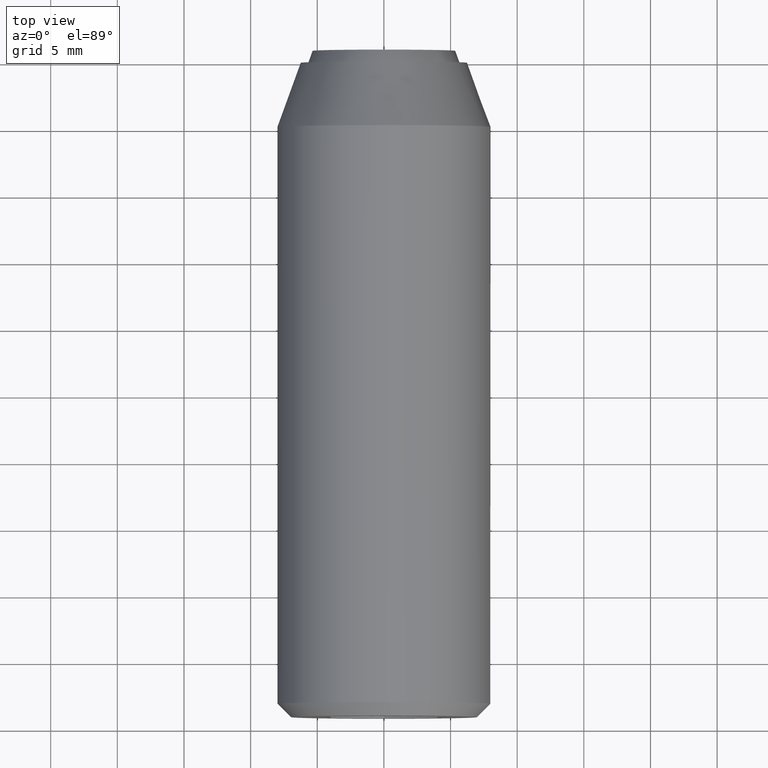
[diagram: clean part render]
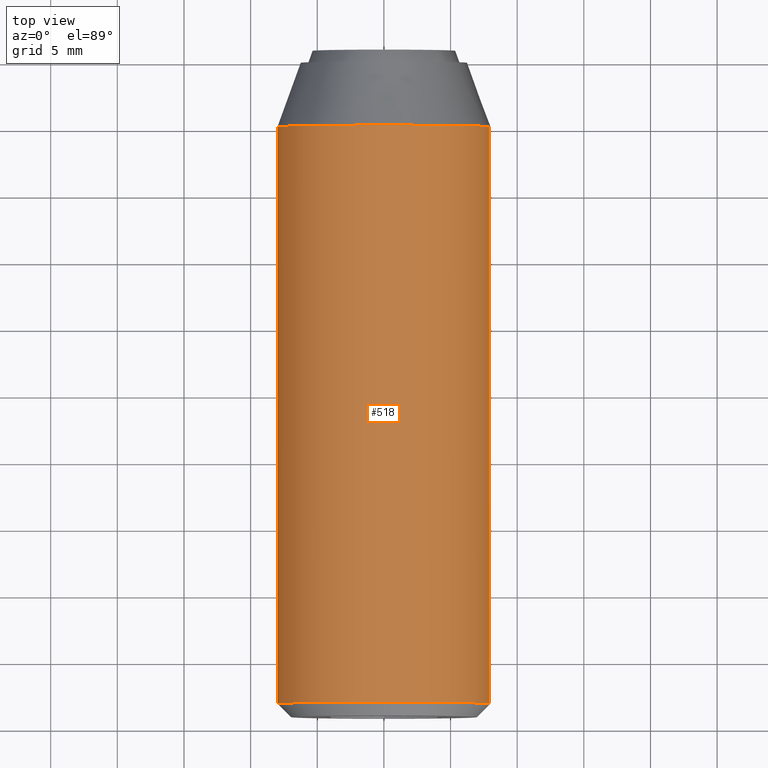
[diagram: same view with one face highlighted and labeled with its STEP entity id]
A machine part, top view. The second image highlights one B-rep face of the part: STEP entity #518.
In plain terms, the highlighted face is a freeform B-spline surface patch.
Its self-contained STEP definition (entity closure, byte-faithful):
#309=CARTESIAN_POINT('',(-7.985078754315566,-4.808085991073178,0.488382263480437));
#310=VERTEX_POINT('',#309);
#316=CARTESIAN_POINT('',(0.0,-4.808085999999999,7.999999999999998));
#317=VERTEX_POINT('',#316);
#318=CARTESIAN_POINT('',(0.0,-4.808085999999999,7.999999999999998));
#319=CARTESIAN_POINT('',(-7.525654250264107,-4.808086000000000,7.999999999999999));
#320=CARTESIAN_POINT('',(-7.985078754315566,-4.808085991073178,0.488382263480437));
#328=(BOUNDED_CURVE()B_SPLINE_CURVE(2,(#318,#319,#320),.UNSPECIFIED.,.F.,.U.)B_SPLINE_CURVE_WITH_KNOTS((3,3),(0.500000000000000,0.739333093030511),.UNSPECIFIED.)CURVE()GEOMETRIC_REPRESENTATION_ITEM()RATIONAL_B_SPLINE_CURVE((1.0,0.719603840054857,0.976072321978106))REPRESENTATION_ITEM(''));
#329=EDGE_CURVE('',#317,#310,#328,.T.);
#331=CARTESIAN_POINT('',(7.947754924152036,-4.808086000000000,0.912793331193569));
#332=VERTEX_POINT('',#331);
#333=CARTESIAN_POINT('',(7.947754924152037,-4.808086000000000,0.912793331193569));
#334=CARTESIAN_POINT('',(7.133794875592221,-4.808086000000000,7.999999999999999));
#335=CARTESIAN_POINT('',(0.0,-4.808085999999999,7.999999999999998));
#343=(BOUNDED_CURVE()B_SPLINE_CURVE(2,(#333,#334,#335),.UNSPECIFIED.,.F.,.U.)B_SPLINE_CURVE_WITH_KNOTS((3,3),(0.269767500636303,0.500000000000000),.UNSPECIFIED.)CURVE()GEOMETRIC_REPRESENTATION_ITEM()RATIONAL_B_SPLINE_CURVE((0.957344239947252,0.730265848743603,1.0))REPRESENTATION_ITEM(''));
#344=EDGE_CURVE('',#332,#317,#343,.T.);
#435=CARTESIAN_POINT('',(7.960632077250591,-3.725788149999998,0.800672556845011));
#436=CARTESIAN_POINT('',(7.954207144072814,-3.725788149999998,0.856614151896449));
#437=CARTESIAN_POINT('',(7.182521220688651,-3.725788149999997,7.575647679305657));
#438=CARTESIAN_POINT('',(0.488388316278856,-3.725788149999997,7.985078387374933));
#439=CARTESIAN_POINT('',(-7.496690071096078,-3.725788149999997,8.473466703653788));
#440=CARTESIAN_POINT('',(-7.988315882366179,-3.725788149999998,0.435455741067429));
#441=CARTESIAN_POINT('',(-7.991535647044304,-3.725788149999999,0.382813053913058));
#442=CARTESIAN_POINT('',(7.960632077250591,-49.209355296250010,0.800672556845011));
#443=CARTESIAN_POINT('',(7.954207144072814,-49.209355296250017,0.856614151896449));
#444=CARTESIAN_POINT('',(7.182521220688651,-49.209355296250003,7.575647679305657));
#445=CARTESIAN_POINT('',(0.488388316278856,-49.209355296250010,7.985078387374933));
#446=CARTESIAN_POINT('',(-7.496690071096078,-49.209355296250010,8.473466703653788));
#447=CARTESIAN_POINT('',(-7.988315882366179,-49.209355296250017,0.435455741067429));
#448=CARTESIAN_POINT('',(-7.991535647044304,-49.209355296250038,0.382813053913058));
#456=(BOUNDED_SURFACE()B_SPLINE_SURFACE(2,1,((#435,#442),(#436,#443),(#437,#444),(#438,#445),(#439,#446),(#440,#447),(#441,#448)),.UNSPECIFIED.,.F.,.F.,.U.)B_SPLINE_SURFACE_WITH_KNOTS((3,1,2,1,3),(2,2),(0.0,0.124608799829179,11.788862716255530,25.043696712194571,25.168299355111959),(0.0,45.483567146250031),.UNSPECIFIED.)GEOMETRIC_REPRESENTATION_ITEM()RATIONAL_B_SPLINE_SURFACE(((0.942326259235948,0.942326259235948),(0.940233605711273,0.940233605711273),(0.742253967444162,0.742253967444162),(1.0,1.0),(0.707106781186548,0.707106781186548),(1.002753355430020,1.002753355430020),(1.005506710860040,1.005506710860040)))REPRESENTATION_ITEM('')SURFACE());
#457=CARTESIAN_POINT('',(7.947753547482387,-48.099999999999987,0.912805317951816));
#458=VERTEX_POINT('',#457);
#459=CARTESIAN_POINT('',(0.0,-48.099999999999987,7.999999999999998));
#460=VERTEX_POINT('',#459);
#461=CARTESIAN_POINT('',(7.947753547482387,-48.100000000000001,0.912805317951816));
#462=CARTESIAN_POINT('',(7.133784045699026,-48.099999999999994,7.999999999999999));
#463=CARTESIAN_POINT('',(0.0,-48.099999999999987,7.999999999999998));
#471=(BOUNDED_CURVE()B_SPLINE_CURVE(2,(#461,#462,#463),.UNSPECIFIED.,.F.,.U.)B_SPLINE_CURVE_WITH_KNOTS((3,3),(0.269767755877842,0.500000000000000),.UNSPECIFIED.)CURVE()GEOMETRIC_REPRESENTATION_ITEM()RATIONAL_B_SPLINE_CURVE((0.957343736458233,0.730266147777666,1.0))REPRESENTATION_ITEM(''));
#472=EDGE_CURVE('',#458,#460,#471,.T.);
#473=ORIENTED_EDGE('',*,*,#472,.F.);
#474=CARTESIAN_POINT('',(7.947754924152036,-4.808086000000000,0.912793331193569));
#475=CARTESIAN_POINT('',(7.947753547482387,-48.099999999999987,0.912805317951816));
#476=QUASI_UNIFORM_CURVE('',1,(#474,#475),.UNSPECIFIED.,.F.,.U.);
#477=EDGE_CURVE('',#332,#458,#476,.T.);
#478=ORIENTED_EDGE('',*,*,#477,.F.);
#479=ORIENTED_EDGE('',*,*,#344,.T.);
#480=ORIENTED_EDGE('',*,*,#329,.T.);
#481=CARTESIAN_POINT('',(-7.985078437128507,-48.099999999999987,0.488387502813780));
#482=VERTEX_POINT('',#481);
#483=CARTESIAN_POINT('',(-7.985078754315566,-4.808085991073178,0.488382263480437));
#484=CARTESIAN_POINT('',(-7.985078437128507,-48.099999999999987,0.488387502813780));
#485=QUASI_UNIFORM_CURVE('',1,(#483,#484),.UNSPECIFIED.,.F.,.U.);
#486=EDGE_CURVE('',#310,#482,#485,.T.);
#487=ORIENTED_EDGE('',*,*,#486,.T.);
#488=CARTESIAN_POINT('',(-7.975338669870242,-48.099999999986913,0.627672765923205));
#489=VERTEX_POINT('',#488);
#490=CARTESIAN_POINT('',(-7.975338669870242,-48.099999999986913,0.627672765923205));
#491=CARTESIAN_POINT('',(-7.980816351049998,-48.100000000000001,0.558072227229160));
#492=CARTESIAN_POINT('',(-7.985078437128508,-48.099999999999994,0.488387502813780));
#500=(BOUNDED_CURVE()B_SPLINE_CURVE(2,(#490,#491,#492),.UNSPECIFIED.,.F.,.U.)B_SPLINE_CURVE_WITH_KNOTS((3,3),(0.736331300628493,0.739332997397738),.UNSPECIFIED.)CURVE()GEOMETRIC_REPRESENTATION_ITEM()RATIONAL_B_SPLINE_CURVE((0.969723356162896,0.972855512244475,0.976072117018720))REPRESENTATION_ITEM(''));
#501=EDGE_CURVE('',#489,#482,#500,.T.);
#502=ORIENTED_EDGE('',*,*,#501,.F.);
#503=CARTESIAN_POINT('',(0.0,-48.099999999999987,7.999999999999998));
#504=CARTESIAN_POINT('',(-7.395123933080755,-48.099999999999994,7.999999999999999));
#505=CARTESIAN_POINT('',(-7.975338669870242,-48.099999999986920,0.627672765923205));
#513=(BOUNDED_CURVE()B_SPLINE_CURVE(2,(#503,#504,#505),.UNSPECIFIED.,.F.,.U.)B_SPLINE_CURVE_WITH_KNOTS((3,3),(0.500000000000000,0.736331300628494),.UNSPECIFIED.)CURVE()GEOMETRIC_REPRESENTATION_ITEM()RATIONAL_B_SPLINE_CURVE((1.0,0.723120658610203,0.969723356162898))REPRESENTATION_ITEM(''));
#514=EDGE_CURVE('',#460,#489,#513,.T.);
#515=ORIENTED_EDGE('',*,*,#514,.F.);
#516=EDGE_LOOP('',(#473,#478,#479,#480,#487,#502,#515));
#517=FACE_OUTER_BOUND('',#516,.T.);
#518=ADVANCED_FACE('',(#517),#456,.T.);